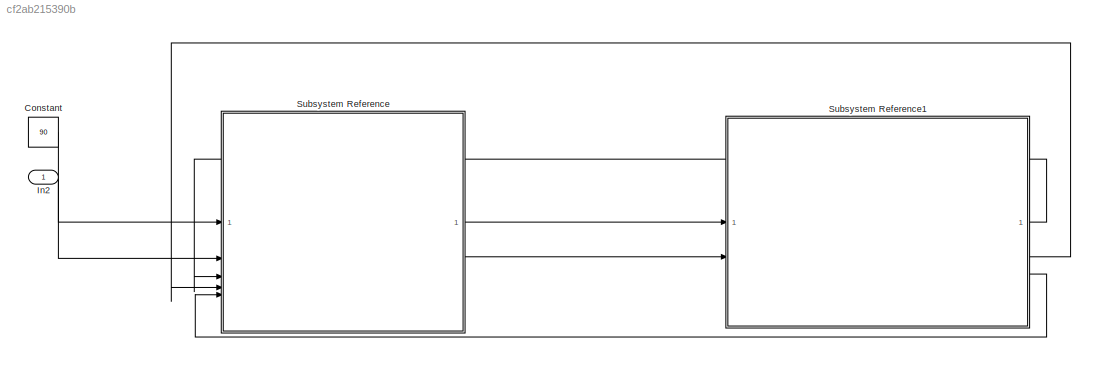
MODEL slx_cf2ab215390b
KIND model
CONFIG AbsTol = auto
CONFIG EnableMultiTasking = off
CONFIG FixedStep = auto
CONFIG MaxStep = auto
CONFIG MinStep = auto
CONFIG RelTol = 1e-3
CONFIG SampleTimeConstraint = Unconstrained
CONFIG SolverName = VariableStepAuto
CONFIG StartTime = 0.0
CONFIG StopTime = 10.0
BLOCK [Constant] Constant
  Value = 90
BLOCK [Inport] In2
BLOCK [SubSystem] Subsystem Reference
  KLowMkvar = 337
  Km = 16 * 10^(-3)
  PID_D = 1
  PID_I = 1
  PID_P = 1
  ReferencedSubsystem = MCU
BLOCK [SubSystem] Subsystem Reference1
  I0 = 60 * 10^(-3)
  Jr = 500 * 10^(-9)
  Jred = 2.4
  Jrp = 1
  KangleSens = 2
  KerL = 1
  Kf = 0.01
  Kfred = 0.002
  Kfrp = 0.001
  Kisens = 0.001
  Km = 16 * 10^(-3)
  KspeedSens = 0.2
  Ku = 7.27
  Kw = 600
  L = 350 * 10^(-6)
  M_p = 0.2
  M_st = 0.1
  R = 10
  ReferencedSubsystem = ControlObject
  V = 24
  g = 9.81
  ired = 100
  irp = 20
  n0 = 14400
LINE Constant:1 -> Subsystem Reference:1
LINE In2:1 -> Subsystem Reference:2
LINE Subsystem Reference1:1 -> Subsystem Reference:3
LINE Subsystem Reference1:2 -> Subsystem Reference:4
LINE Subsystem Reference1:3 -> Subsystem Reference:5
LINE Subsystem Reference:1 -> Subsystem Reference1:1
LINE Subsystem Reference:2 -> Subsystem Reference1:2
